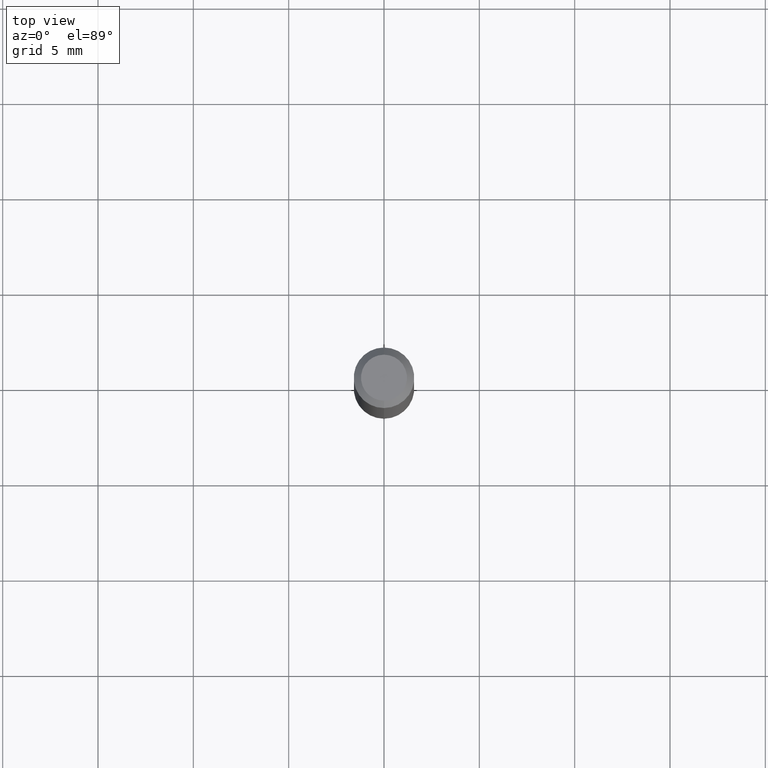
[diagram: clean part render]
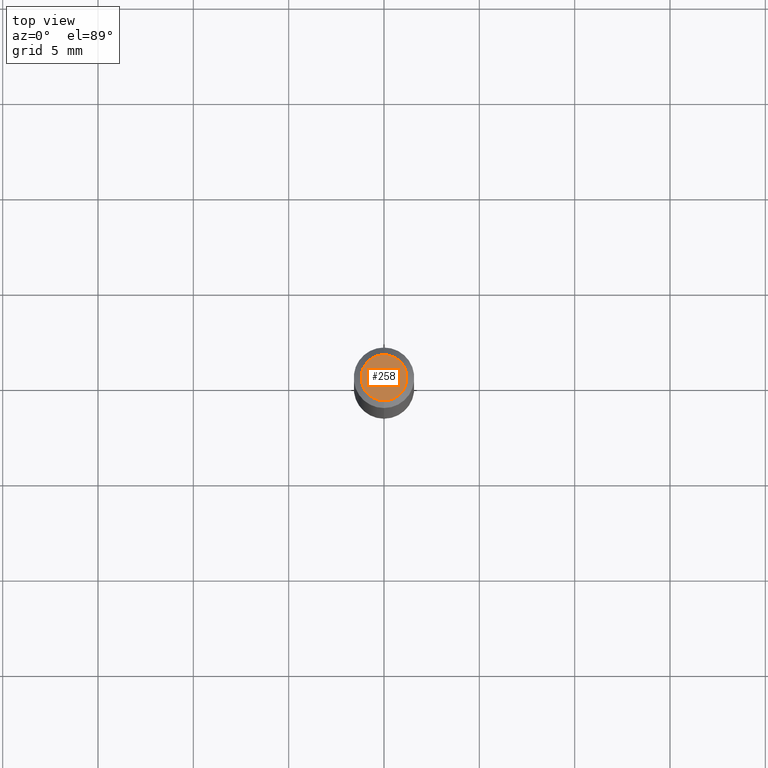
[diagram: same view with one face highlighted and labeled with its STEP entity id]
A machine part, top view. The second image highlights one B-rep face of the part: STEP entity #258.
In plain terms, the highlighted planar face has unit normal (0, -0, -1).
Its self-contained STEP definition (entity closure, byte-faithful):
#29 = CARTESIAN_POINT ( 'NONE',  ( 2.167025876121797914E-46, -3.093900683091128440E-32, -8.861338168035158887E-18 ) ) ;
#38 = DIRECTION ( 'NONE',  ( -6.982962677686266711E-15, -1.000000000000000000, 3.491459895133587439E-15 ) ) ;
#65 = DIRECTION ( 'NONE',  ( -6.982962677686266711E-15, -1.000000000000000000, 3.491459895133587439E-15 ) ) ;
#70 = DIRECTION ( 'NONE',  ( -2.445483780247488928E-29, 3.491459895133586651E-15, 1.000000000000000000 ) ) ;
#94 = DIRECTION ( 'NONE',  ( 2.445483780247488368E-29, -3.491459895133586651E-15, -1.000000000000000000 ) ) ;
#139 = PLANE ( 'NONE',  #237 ) ;
#144 = AXIS2_PLACEMENT_3D ( 'NONE', #29, #70, #65 ) ;
#189 = EDGE_CURVE ( 'NONE', #196, #400, #498, .T. ) ;
#196 = VERTEX_POINT ( 'NONE', #197 ) ;
#197 = CARTESIAN_POINT ( 'NONE',  ( -3.773273898774340269E-16, -0.04749999999999999362, 1.569830068508101866E-16 ) ) ;
#237 = AXIS2_PLACEMENT_3D ( 'NONE', #379, #94, #252 ) ;
#245 = DIRECTION ( 'NONE',  ( -2.445483780247488928E-29, 3.491459895133586651E-15, 1.000000000000000000 ) ) ;
#251 = FACE_OUTER_BOUND ( 'NONE', #508, .T. ) ;
#252 = DIRECTION ( 'NONE',  ( 6.982962677686265922E-15, 1.000000000000000000, -3.491459895133586651E-15 ) ) ;
#258 = ADVANCED_FACE ( 'NONE', ( #251 ), #139, .F. ) ;
#274 = CARTESIAN_POINT ( 'NONE',  ( 2.167025876121797914E-46, -3.093900683091128440E-32, -8.861338168035158887E-18 ) ) ;
#349 = ORIENTED_EDGE ( 'NONE', *, *, #189, .T. ) ;
#355 = AXIS2_PLACEMENT_3D ( 'NONE', #274, #245, #38 ) ;
#379 = CARTESIAN_POINT ( 'NONE',  ( 3.316907271900976096E-16, 0.04749999999999999362, -1.702750141028629442E-16 ) ) ;
#400 = VERTEX_POINT ( 'NONE', #506 ) ;
#408 = EDGE_CURVE ( 'NONE', #400, #196, #448, .T. ) ;
#438 = ORIENTED_EDGE ( 'NONE', *, *, #408, .T. ) ;
#448 = CIRCLE ( 'NONE', #144, 0.04749999999999999362 ) ;
#498 = CIRCLE ( 'NONE', #355, 0.04749999999999999362 ) ;
#506 = CARTESIAN_POINT ( 'NONE',  ( 3.840629472727447874E-16, 0.04749999999999999362, -1.747056831868805136E-16 ) ) ;
#508 = EDGE_LOOP ( 'NONE', ( #438, #349 ) ) ;